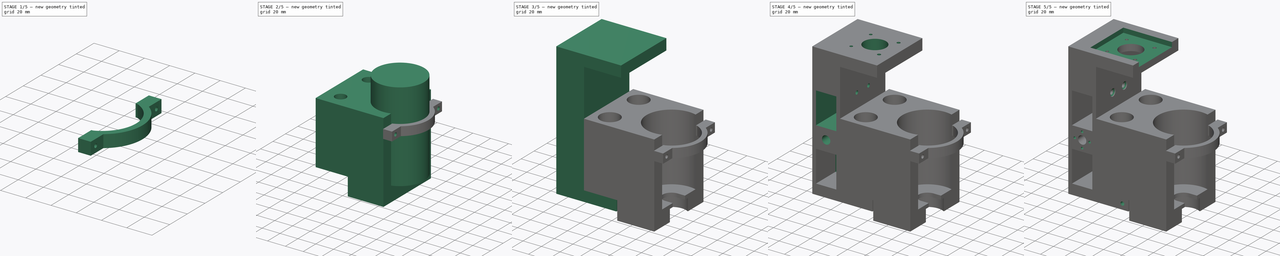
[diagram: build sequence overview — one tinted view per stage of 5, left to right]
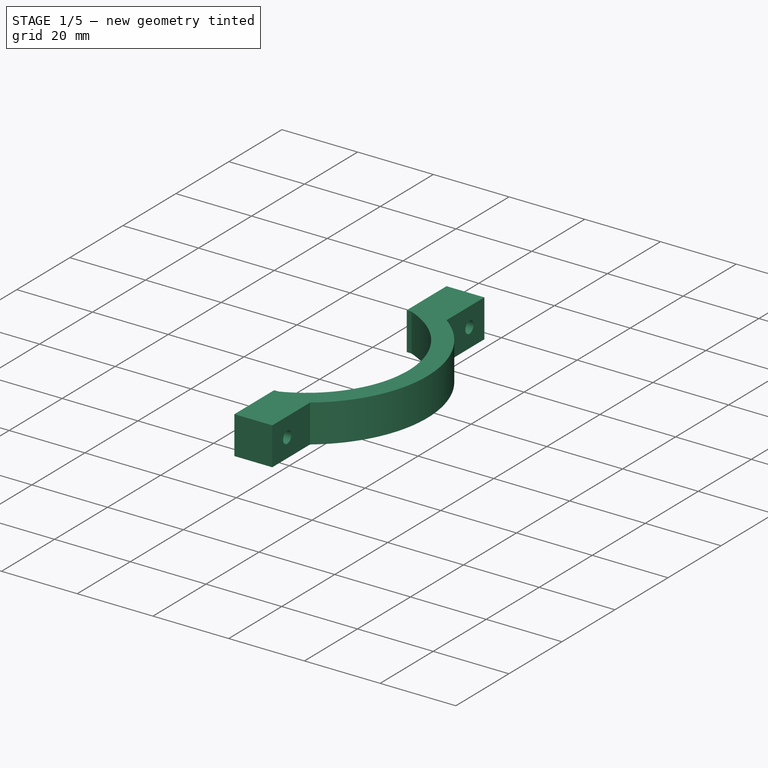
[diagram: stage 1 of 5 — iso view after this stage's code; geometry added in this stage tinted green]
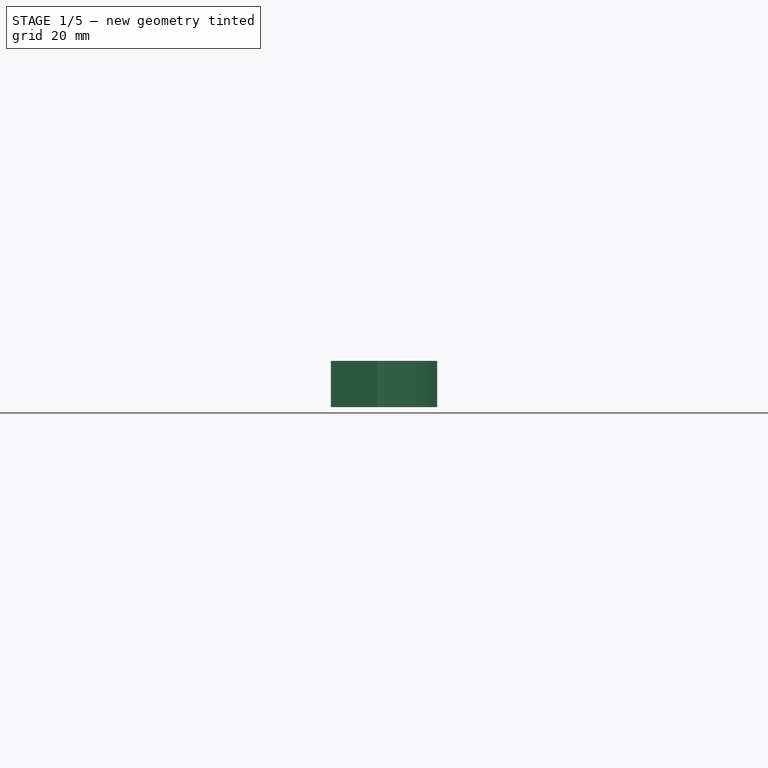
[diagram: stage 1 of 5 — front view after this stage's code; geometry added in this stage tinted green]
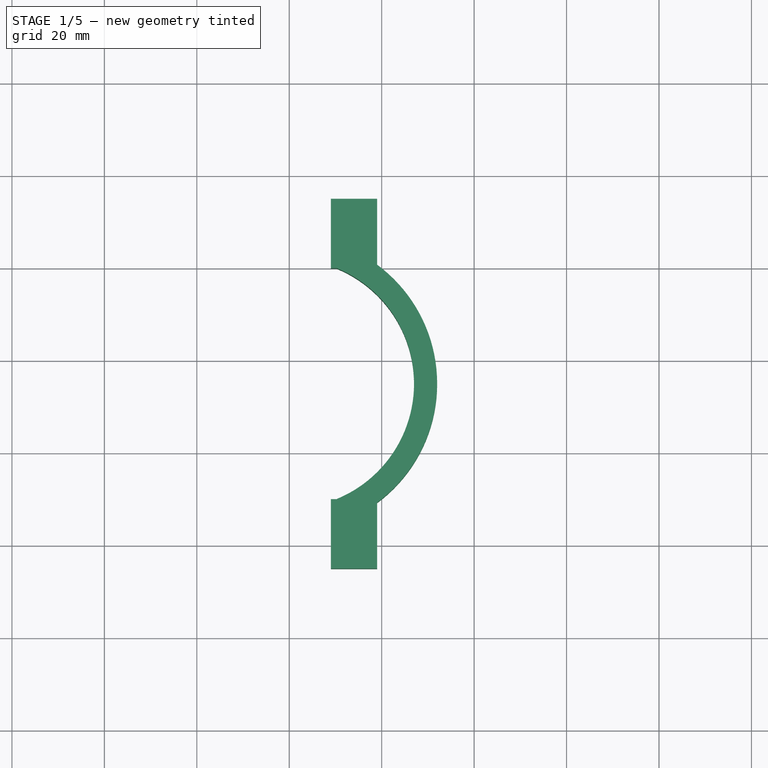
[diagram: stage 1 of 5 — top view after this stage's code; geometry added in this stage tinted green]
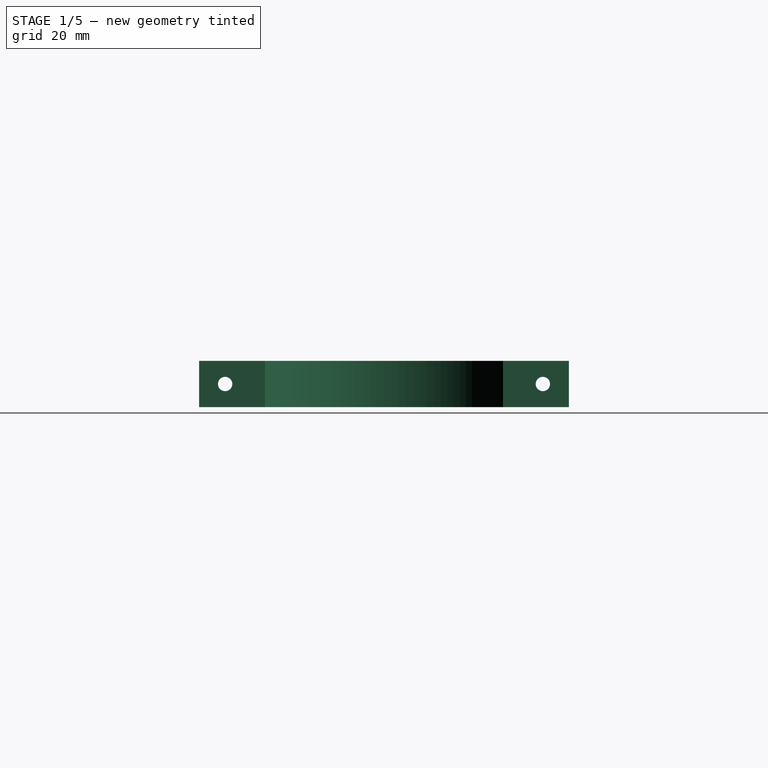
[diagram: stage 1 of 5 — right view after this stage's code; geometry added in this stage tinted green]
FCSTD DOCUMENT  (FreeCAD 0.16R6712 (Git))
Label: c_V3
License: All rights reserved
LicenseURL: http://en.wikipedia.org/wiki/All_rights_reserved
objects: Sketcher::SketchObject×21, PartDesign::Pocket×17, Part::Box×8, Part::Cut×7, Part::Cylinder×5, PartDesign::Pad×4, Part::MultiFuse×4, PartDesign::Chamfer×3, Part::Feature×2, PartDesign::Fillet×1
note: 93 computed .brp shape members not serialized (recipe doc carries the construction recipe); baked Part::Feature solids carry a one-line shape summary decoded from their .brp

FEATURE [Part::Feature] Fillet001
  shape: bbox 76 x 76 x 90 mm, 20 faces (baked)
FEATURE [Sketcher::SketchObject] Sketch018
  ExternalGeometry = -> [Fillet001]
  Placement = pos=(108,0,0) rot=(0.57735,0.57735,0.57735;2.0944rad)
  Support = -> Fillet001 [Face9]
  sketch-geometry (2):
    g0: Circle CenterX=0.629575 CenterY=68 CenterZ=0 NormalX=0 NormalY=0 NormalZ=1 Radius=1.55
    g1: Circle CenterX=69.3704 CenterY=68 CenterZ=0 NormalX=0 NormalY=0 NormalZ=1 Radius=1.55
  constraints (6):
    c: Radius(g0) = 1.55
    c: Equal(g0,g1)
    c: DistanceY(g0,g-3) = 15
    c: DistanceY(g1,g-4) = 15
    c: DistanceX(g-3,g0) = 3.62957
    c: DistanceX(g1,g-4) = 3.62957
FEATURE [PartDesign::Pad] Pad003
  Length = 15
  Length2 = 100
  Sketch = -> Sketch018
  Type = 0
FEATURE [Part::Cylinder] Cylinder003  label="Cilindro003"
  Angle = 360
  Height = 100
  Placement = pos=(100,35,10) rot=(0,0,1;0rad)
  Radius = 27
FEATURE [Part::Cylinder] Cylinder004  label="Cilindro004"
  Angle = 360
  Height = 10
  Placement = pos=(100,35,63) rot=(0,0,1;0rad)
  Radius = 32
FEATURE [Part::Cut] Cut005
  Base = -> Cylinder004
  Tool = -> Cylinder003
FEATURE [Sketcher::SketchObject] Sketch019
  ExternalGeometry = -> [Cut005]
  Placement = pos=(0,0,73) rot=(0,0,1;0rad)
  Support = -> Cut005 [Face2]
  sketch-geometry (3):
    g0: LineSegment StartX=100 StartY=35 StartZ=0 EndX=114.195 EndY=69.2706 EndZ=0
    g1: LineSegment StartX=100 StartY=35 StartZ=0 EndX=114.195 EndY=0.729412 EndZ=0
    g2: ArcOfCircle CenterX=100 CenterY=35 CenterZ=0 NormalX=0 NormalY=0 NormalZ=1 Radius=37.0942 StartAngle=1.1781 EndAngle=5.10509
  constraints (7):
    c: Coincident(g0,g-3)
    c: Coincident(g1,g0)
    c: Coincident(g2,g0)
    c: Coincident(g2,g1)
    c: Coincident(g2,g0)
    c: Angle(g1,g0) = 2.35619
    c: Angle(g0,g-1) = 1.9635
FEATURE [PartDesign::Pocket] Pocket013003
  Length = 5
  Sketch = -> Sketch019
  Type = 1
FEATURE [Part::Box] Box007  label="Cubo003"
  Height = 10
  Length = 10
  Placement = pos=(109,-5,63) rot=(0,0,1;0rad)
  Width = 15
FEATURE [Part::Box] Box008  label="Cubo004"
  Height = 10
  Length = 10
  Placement = pos=(109,60,63) rot=(0,0,1;0rad)
  Width = 15
FEATURE [Part::MultiFuse] Fusion002
  Shapes = -> [Box007,Pocket013003]
FEATURE [Part::MultiFuse] Fusion003
  Shapes = -> [Fusion002,Box008]
FEATURE [Part::Cut] Cut006
  Base = -> Fusion003
  Tool = -> Pad003
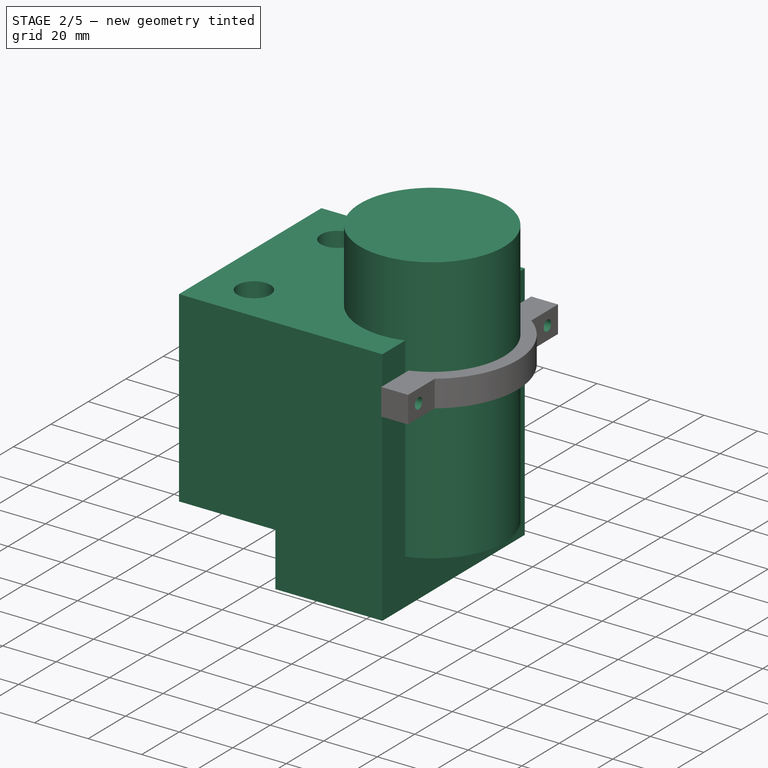
[diagram: stage 2 of 5 — iso view after this stage's code; geometry added in this stage tinted green]
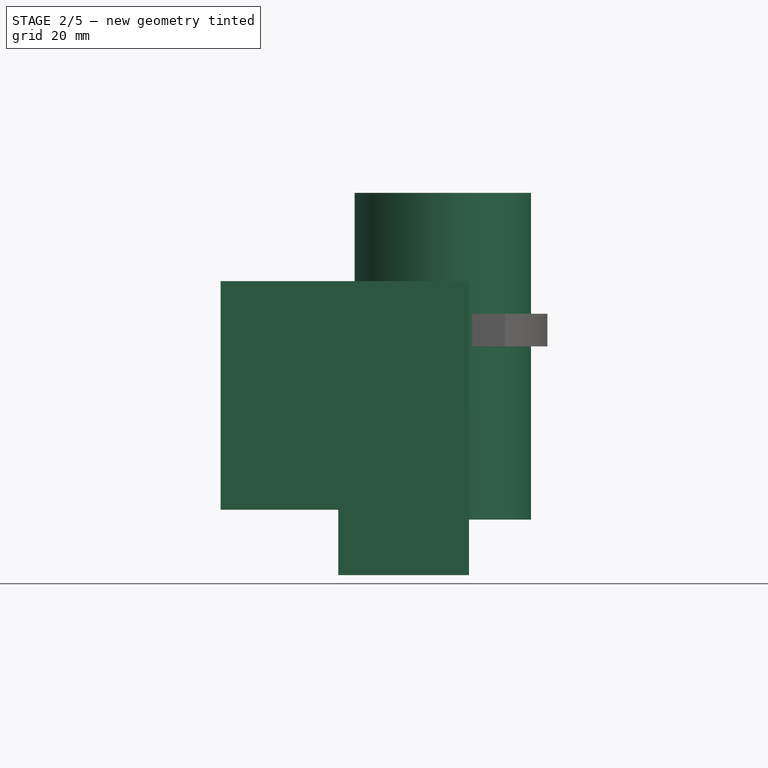
[diagram: stage 2 of 5 — front view after this stage's code; geometry added in this stage tinted green]
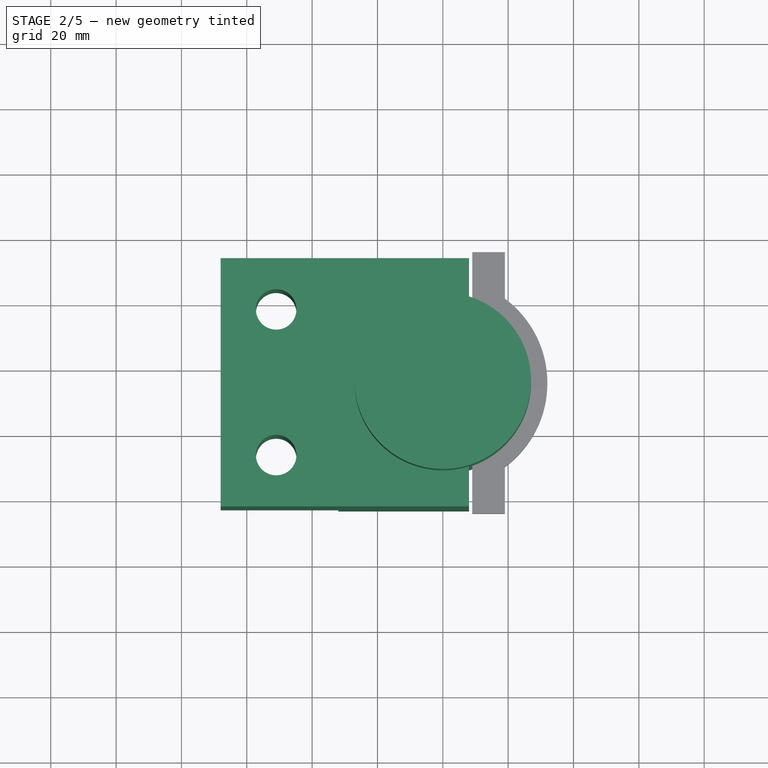
[diagram: stage 2 of 5 — top view after this stage's code; geometry added in this stage tinted green]
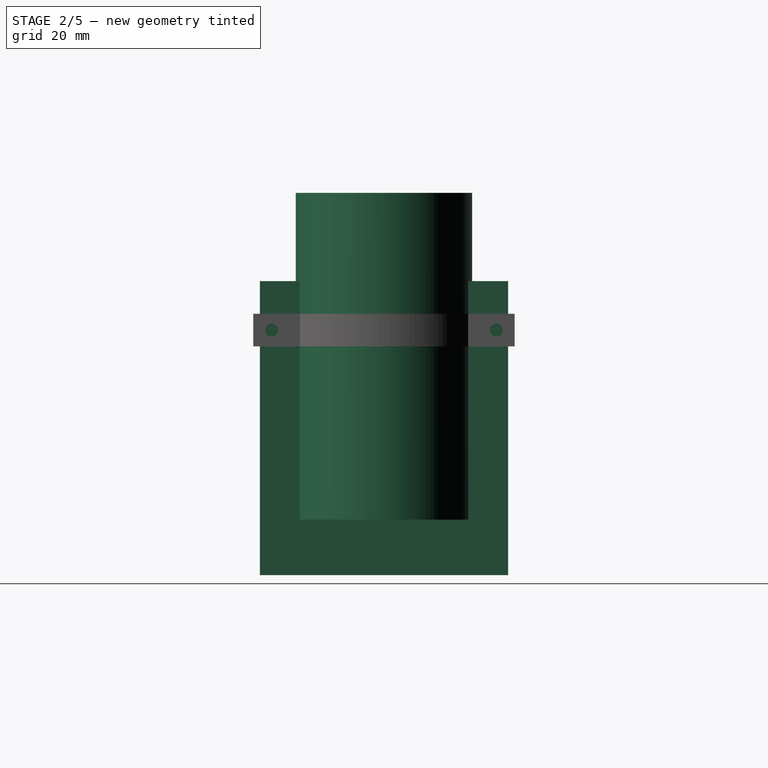
[diagram: stage 2 of 5 — right view after this stage's code; geometry added in this stage tinted green]
FEATURE [Part::Box] Box005  label="Cubo001"
  Height = 70
  Length = 76
  Placement = pos=(32,-3,40) rot=(0,0,1;0rad)
  Width = 76
FEATURE [Part::Cylinder] Cylinder  label="Cilindro"
  Angle = 360
  Height = 132
  Placement = pos=(49,12.7,0) rot=(0,0,1;0rad)
  Radius = 6.2
FEATURE [Part::Cylinder] Cylinder001  label="Cilindro001"
  Angle = 360
  Height = 132
  Placement = pos=(49,57.3,0) rot=(0,0,1;0rad)
  Radius = 6.2
FEATURE [Part::MultiFuse] Fusion  label="barrasLisas"
  Shapes = -> [Cylinder,Cylinder001]
FEATURE [Part::Cut] Cut003
  Base = -> Box005
  Placement = pos=(0,0,-27) rot=(0,0,1;0rad)
  Tool = -> Fusion
FEATURE [Part::Box] Box006  label="Cubo002"
  Height = 20
  Length = 40
  Placement = pos=(68,-3,-7) rot=(0,0,1;0rad)
  Width = 76
FEATURE [Part::Cylinder] Cylinder002  label="Cilindro002"
  Angle = 360
  Height = 100
  Placement = pos=(100,35,10) rot=(0,0,1;0rad)
  Radius = 27
FEATURE [Part::Feature] Pocket013001  label="v002"
  shape: bbox 76 x 76 x 90 mm, 18 faces (baked)
FEATURE [Sketcher::SketchObject] Sketch017
  ExternalGeometry = -> [Pocket013001]
  Placement = pos=(0,-3,0) rot=(1,0,0;1.5708rad)
  Support = -> Pocket013001 [Face15]
  sketch-geometry (4):
    g0: ArcOfCircle CenterX=-12.2473 CenterY=-68.3709 CenterZ=0 NormalX=0 NormalY=0 NormalZ=1 Radius=114.284 StartAngle=0.566881 EndAngle=1.17324
    g1: LineSegment StartX=32 StartY=37 StartZ=0 EndX=32 EndY=13 EndZ=0
    g2: LineSegment StartX=32 StartY=13 StartZ=0 EndX=68 EndY=-7 EndZ=0
    g3: LineSegment StartX=68 StartY=-7 StartZ=0 EndX=84.1605 EndY=-7 EndZ=0
  constraints (10):
    c: PointOnObject(g3,g-3)
    c: PointOnObject(g0,g-4)
    c: Coincident(g0,g1)
    c: Coincident(g1,g2)
    c: Coincident(g2,g-3)
    c: Coincident(g2,g3)
    c: Coincident(g1,g-4)
    c: Coincident(g3,g0)
    c: PointOnObject(g-5,g0)
    c: DistanceY(g1,g0) = 24
FEATURE [PartDesign::Pocket] Pocket013002  label="v2"
  Length = 5
  Sketch = -> Sketch017
  Type = 1
FEATURE [PartDesign::Fillet] Fillet  label="sin_taladro"
  Base = -> Pocket013002 [Edge30,Edge36]
  Radius = 4
FEATURE [Sketcher::SketchObject] Sketch020
  ExternalGeometry = -> [Cut006]
  Placement = pos=(119,0,0) rot=(0.57735,0.57735,0.57735;2.0944rad)
  Support = -> Cut006 [Face22]
  sketch-geometry (2):
    g0: Circle CenterX=0.629575 CenterY=68 CenterZ=0 NormalX=0 NormalY=0 NormalZ=1 Radius=2
    g1: Circle CenterX=69.3704 CenterY=68 CenterZ=0 NormalX=0 NormalY=0 NormalZ=1 Radius=2
  constraints (4):
    c: Coincident(g0,g-3)
    c: Radius(g0) = 2
    c: Coincident(g1,g-4)
    c: Radius(g1) = 2
FEATURE [PartDesign::Pocket] Pocket013004
  Length = 5
  Sketch = -> Sketch020
  Type = 1
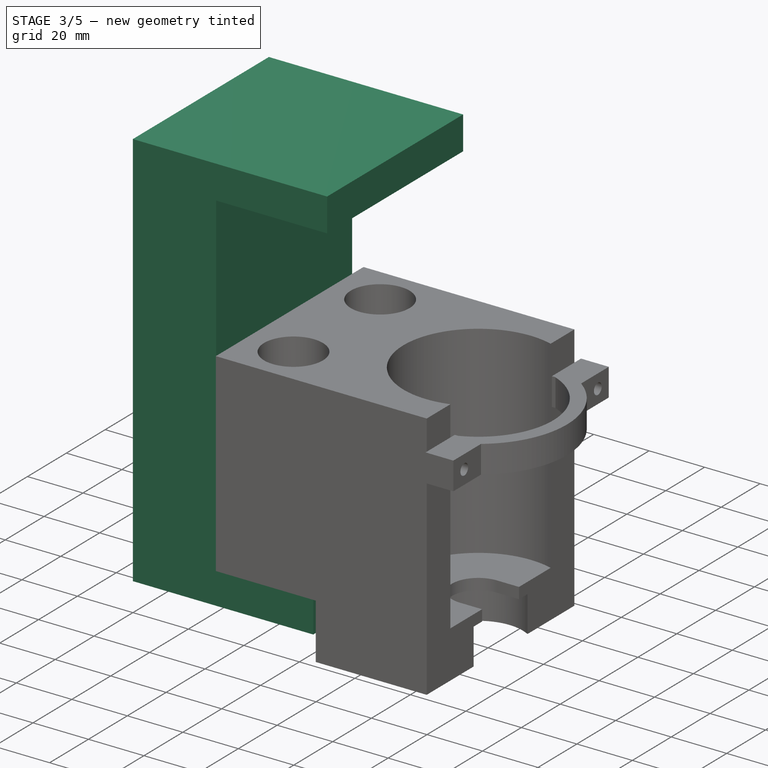
[diagram: stage 3 of 5 — iso view after this stage's code; geometry added in this stage tinted green]
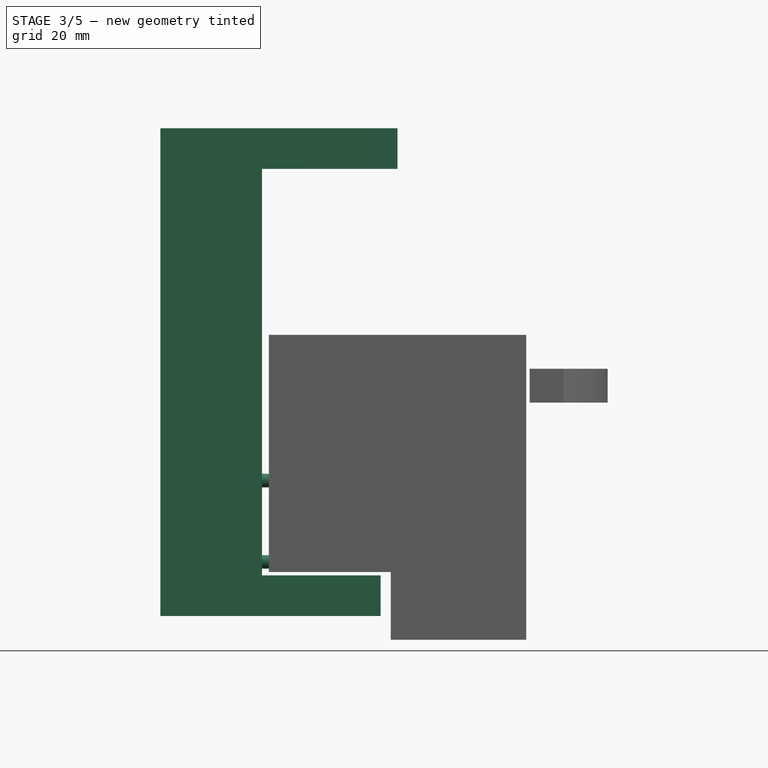
[diagram: stage 3 of 5 — front view after this stage's code; geometry added in this stage tinted green]
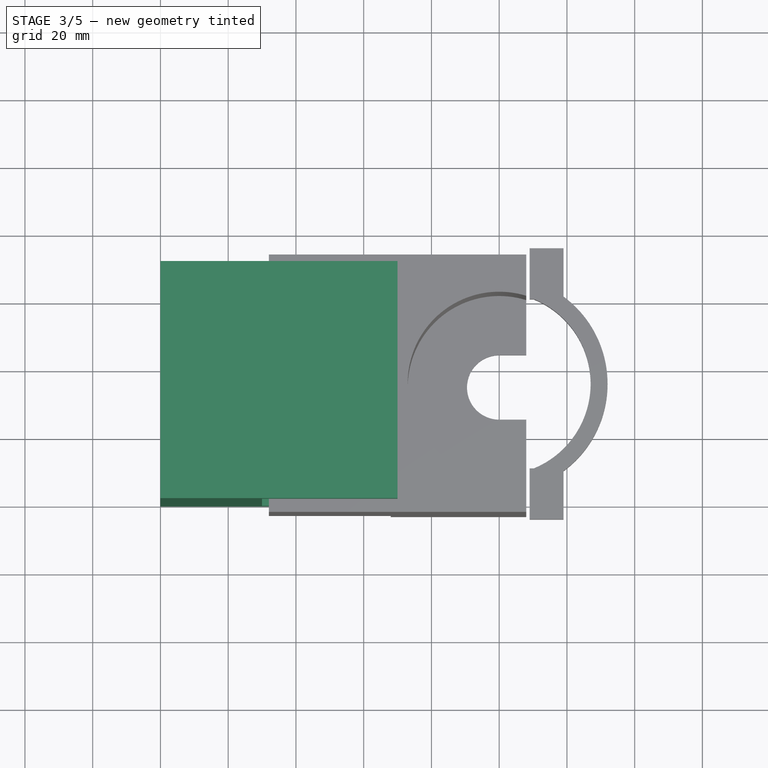
[diagram: stage 3 of 5 — top view after this stage's code; geometry added in this stage tinted green]
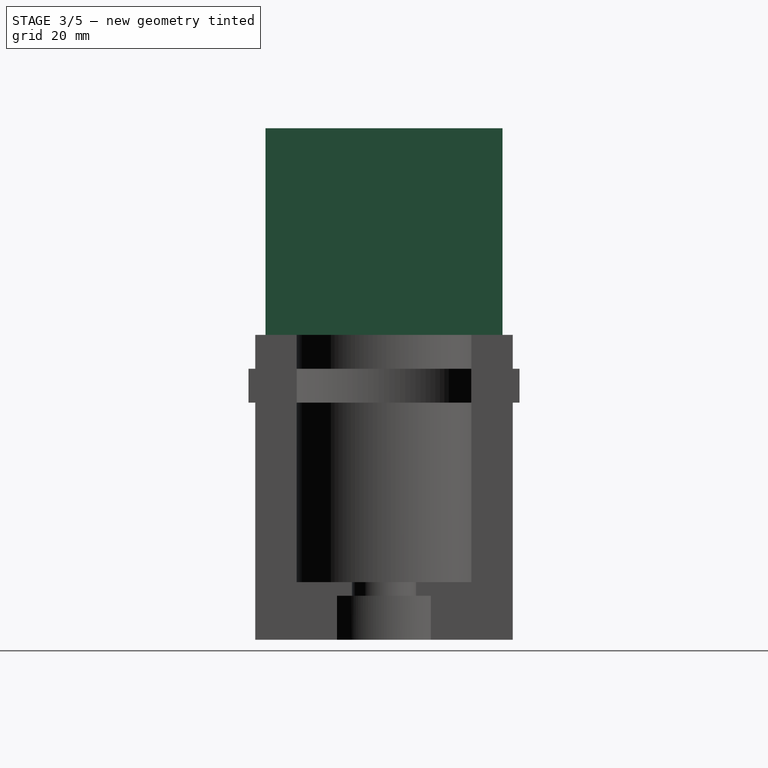
[diagram: stage 3 of 5 — right view after this stage's code; geometry added in this stage tinted green]
FEATURE [Part::Box] Box  label="Cubo"
  Height = 144
  Length = 70
  Width = 70
FEATURE [Sketcher::SketchObject] Sketch
  ExternalGeometry = -> [Box]
  Placement = pos=(0,0,0) rot=(1,0,0;1.5708rad)
  Support = -> Box [Face3]
  sketch-geometry (6):
    g0: LineSegment StartX=30 StartY=132 StartZ=0 EndX=72 EndY=132 EndZ=0
    g1: LineSegment StartX=72 StartY=132 StartZ=0 EndX=72 EndY=-8 EndZ=0
    g2: LineSegment StartX=65 StartY=12 StartZ=0 EndX=30 EndY=12 EndZ=0
    g3: LineSegment StartX=30 StartY=12 StartZ=0 EndX=30 EndY=132 EndZ=0
    g4: LineSegment StartX=65 StartY=12 StartZ=0 EndX=65 EndY=-8 EndZ=0
    g5: LineSegment StartX=65 StartY=-8 StartZ=0 EndX=72 EndY=-8 EndZ=0
  constraints (18):
    c: Coincident(g0,g1)
    c: Coincident(g2,g3)
    c: Coincident(g3,g0)
    c: Horizontal(g0)
    c: Horizontal(g2)
    c: Vertical(g1)
    c: Vertical(g3)
    c: DistanceY(g-1,g2) = 12
    c: DistanceY(g0,g-3) = 12
    c: DistanceX(g-1,g2) = 30
    c: Coincident(g4,g5)
    c: Horizontal(g5)
    c: Vertical(g4)
    c: Coincident(g2,g4)
    c: DistanceX(g2,g2) = 35
    c: DistanceX(g0,g0) = 42
    c: DistanceY(g4,g4) = 20
    c: Coincident(g1,g5)
FEATURE [PartDesign::Pocket] Pocket
  Length = 5
  Sketch = -> Sketch
  Type = 1
FEATURE [Part::Box] Box001  label="hueco_rodamientos_inferior"
  Height = 34
  Length = 22
  Placement = pos=(4,0,11) rot=(0,0,1;0rad)
  Width = 30
FEATURE [Sketcher::SketchObject] Sketch002
  ExternalGeometry = -> [Box001]
  Placement = pos=(26,0,11) rot=(0.57735,0.57735,0.57735;2.0944rad)
  Support = -> Box001 [Face2]
  sketch-geometry (4):
    g0: Circle CenterX=6 CenterY=29 CenterZ=0 NormalX=0 NormalY=0 NormalZ=1 Radius=2
    g1: Circle CenterX=6 CenterY=5 CenterZ=0 NormalX=0 NormalY=0 NormalZ=1 Radius=2
    g2: Circle CenterX=24 CenterY=29 CenterZ=0 NormalX=0 NormalY=0 NormalZ=1 Radius=2
    g3: Circle CenterX=24 CenterY=5 CenterZ=0 NormalX=0 NormalY=0 NormalZ=1 Radius=2
  constraints (12):
    c: DistanceY(g1,g0) = 24
    c: DistanceY(g3,g2) = 24
    c: DistanceX(g0,g2) = 18
    c: Radius(g0) = 2
    c: Equal(g0,g2)
    c: Equal(g2,g3)
    c: Equal(g3,g1)
    c: DistanceX(g1,g0) = 0
    c: DistanceX(g2,g3) = 0
    c: DistanceY(g0,g2) = 0
    c: DistanceX(g-1,g1) = 6
    c: DistanceY(g-1,g1) = 5
FEATURE [PartDesign::Pad] Pad  label="rodamiento1"
  Length = 10
  Length2 = 100
  Placement = pos=(4,0,11) rot=(0,0,1;0rad)
  Sketch = -> Sketch002
  Type = 0
FEATURE [Sketcher::SketchObject] Sketch014
  ExternalGeometry = -> [Cut003]
  Placement = pos=(0,0,83) rot=(0,0,1;0rad)
  Support = -> Cut003 [Face3]
  sketch-geometry (2):
    g0: Circle CenterX=49 CenterY=57.3 CenterZ=0 NormalX=0 NormalY=0 NormalZ=1 Radius=10.6
    g1: Circle CenterX=49 CenterY=12.7 CenterZ=0 NormalX=0 NormalY=0 NormalZ=1 Radius=10.6
  constraints (4):
    c: Coincident(g0,g-3)
    c: Coincident(g1,g-4)
    c: Radius(g1) = 10.6
    c: Equal(g1,g0)
FEATURE [PartDesign::Pocket] Pocket011
  Length = 5
  Placement = pos=(0,0,-27) rot=(0,0,1;0rad)
  Sketch = -> Sketch014
  Type = 1
FEATURE [Part::MultiFuse] Fusion001
  Shapes = -> [Pocket011,Box006]
FEATURE [Part::Cut] Cut004
  Base = -> Fusion001
  Tool = -> Cylinder002
FEATURE [Sketcher::SketchObject] Sketch015
  ExternalGeometry = -> [Cut004]
  Placement = pos=(0,0,10) rot=(0,0,1;0rad)
  Support = -> Cut004 [Face16]
  sketch-geometry (4):
    g0: ArcOfCircle CenterX=100 CenterY=35 CenterZ=0 NormalX=0 NormalY=0 NormalZ=1 Radius=9.5 StartAngle=1.5708 EndAngle=4.71239
    g1: LineSegment StartX=100 StartY=44.5 StartZ=0 EndX=110 EndY=44.5 EndZ=0
    g2: LineSegment StartX=110 StartY=44.5 StartZ=0 EndX=110 EndY=25.5 EndZ=0
    g3: LineSegment StartX=110 StartY=25.5 StartZ=0 EndX=100 EndY=25.5 EndZ=0
  constraints (9):
    c: Coincident(g0,g-3)
    c: Radius(g0) = 9.5
    c: Coincident(g1,g2)
    c: Coincident(g2,g3)
    c: Horizontal(g1)
    c: Horizontal(g3)
    c: Vertical(g2)
    c: Coincident(g0,g1)
    c: Coincident(g0,g3)
FEATURE [PartDesign::Pocket] Pocket012
  Length = 5
  Sketch = -> Sketch015
  Type = 1
FEATURE [Sketcher::SketchObject] Sketch016
  ExternalGeometry = -> [Pocket012]
  Placement = pos=(0,0,-7) rot=(1,0,0;3.14159rad)
  Support = -> Pocket012 [Face14]
  sketch-geometry (1):
    g0: Circle CenterX=100 CenterY=-35 CenterZ=0 NormalX=0 NormalY=0 NormalZ=1 Radius=16
  constraints (2):
    c: Coincident(g0,g-3)
    c: Radius(g0) = 16
FEATURE [PartDesign::Pocket] Pocket013  label="v1"
  Length = 13
  Sketch = -> Sketch016
  Type = 0
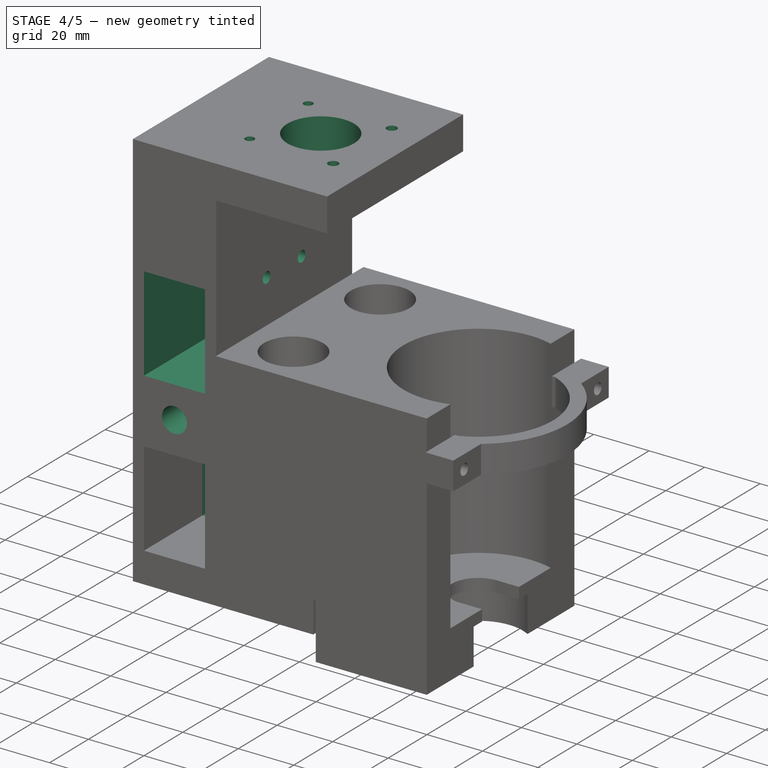
[diagram: stage 4 of 5 — iso view after this stage's code; geometry added in this stage tinted green]
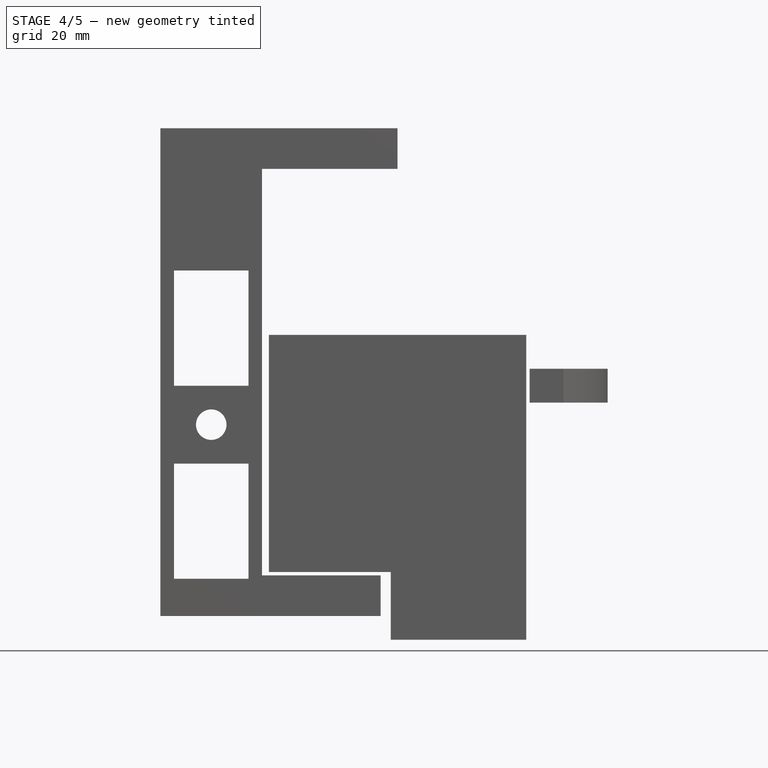
[diagram: stage 4 of 5 — front view after this stage's code; geometry added in this stage tinted green]
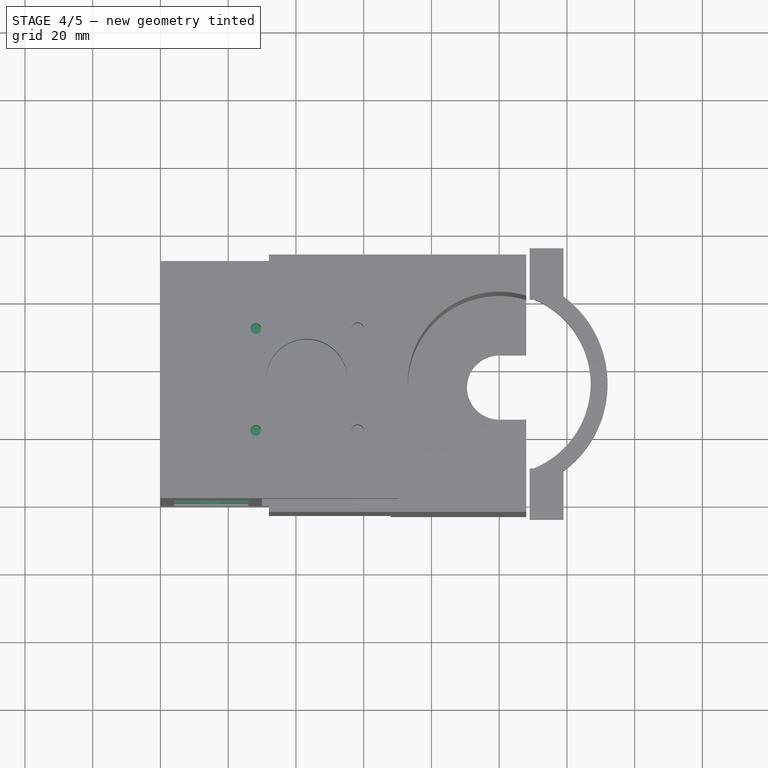
[diagram: stage 4 of 5 — top view after this stage's code; geometry added in this stage tinted green]
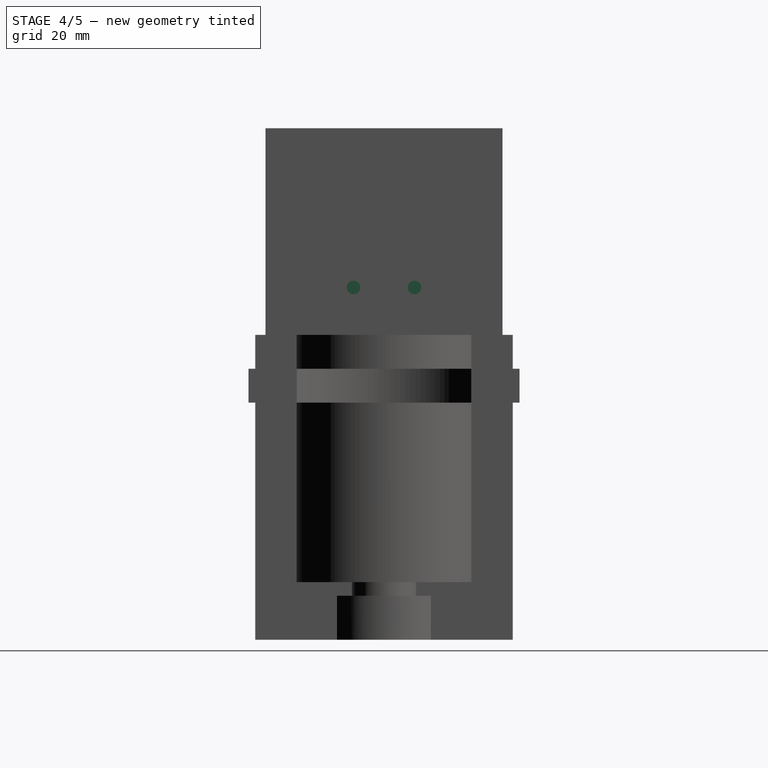
[diagram: stage 4 of 5 — right view after this stage's code; geometry added in this stage tinted green]
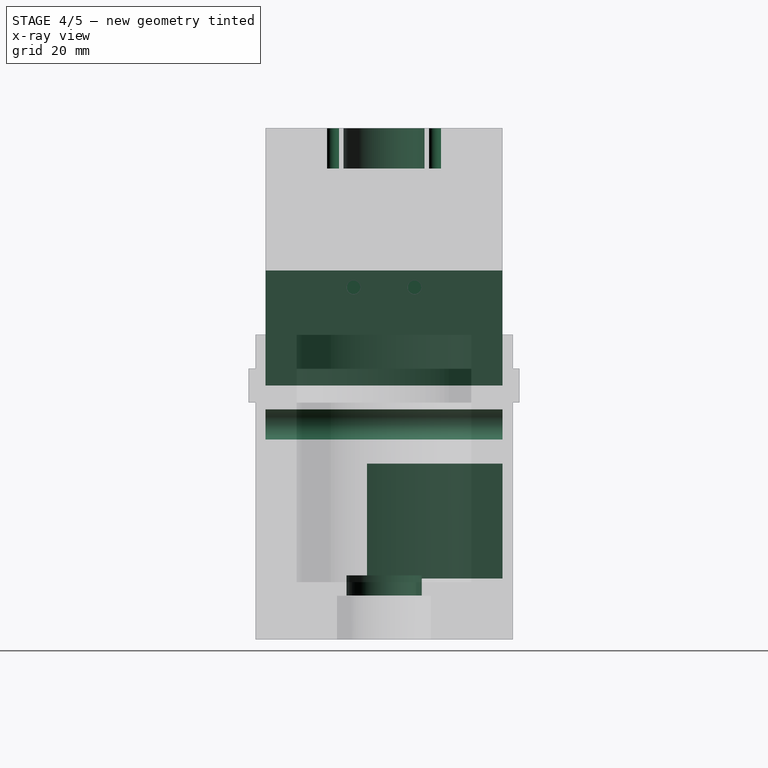
[diagram: stage 4 of 5 — x-ray composite at the right view; earlier geometry ghosted, this stage's added geometry solid]
FEATURE [Sketcher::SketchObject] Sketch001
  ExternalGeometry = -> [Pocket]
  Placement = pos=(0,0,0) rot=(1,0,0;1.5708rad)
  Support = -> Pocket [Face2]
  sketch-geometry (11):
    g0: Circle CenterX=15 CenterY=28 CenterZ=0 NormalX=0 NormalY=0 NormalZ=1 Radius=4.1
    g1: Circle CenterX=15 CenterY=85 CenterZ=0 NormalX=0 NormalY=0 NormalZ=1 Radius=4.1
    g2: Circle CenterX=15 CenterY=56.5 CenterZ=0 NormalX=0 NormalY=0 NormalZ=1 Radius=4.5
    g3: LineSegment StartX=4 StartY=102 StartZ=0 EndX=26 EndY=102 EndZ=0
    g4: LineSegment StartX=26 StartY=102 StartZ=0 EndX=26 EndY=68 EndZ=0
    g5: LineSegment StartX=26 StartY=68 StartZ=0 EndX=4 EndY=68 EndZ=0
    g6: LineSegment StartX=4 StartY=68 StartZ=0 EndX=4 EndY=102 EndZ=0
    g7: LineSegment StartX=4 StartY=45 StartZ=0 EndX=26 EndY=45 EndZ=0
    g8: LineSegment StartX=26 StartY=45 StartZ=0 EndX=26 EndY=11 EndZ=0
    g9: LineSegment StartX=26 StartY=11 StartZ=0 EndX=4 EndY=11 EndZ=0
    g10: LineSegment StartX=4 StartY=11 StartZ=0 EndX=4 EndY=45 EndZ=0
  constraints (33):
    c: DistanceX(g0,g-3) = 15
    c: DistanceY(g-3,g0) = 16
    c: Radius(g0) = 4.1
    c: Radius(g1) = 4.1
    c: Radius(g2) = 4.5
    c: DistanceY(g0,g2) = 28.5
    c: DistanceX(g2,g0) = 0
    c: DistanceY(g2,g1) = 28.5
    c: DistanceX(g1,g0) = 0
    c: Coincident(g3,g4)
    c: Coincident(g4,g5)
    c: Coincident(g5,g6)
    c: Coincident(g6,g3)
    c: Horizontal(g3)
    c: Horizontal(g5)
    c: Vertical(g4)
    c: Vertical(g6)
    c: Coincident(g7,g8)
    c: Coincident(g8,g9)
    c: Coincident(g9,g10)
    c: Coincident(g10,g7)
    c: Horizontal(g7)
    c: Horizontal(g9)
    c: Vertical(g8)
    c: Vertical(g10)
    c: DistanceX(g3,g3) = 22
    c: DistanceY(g4,g4) = 34
    c: DistanceY(g1,g3) = 17
    c: DistanceX(g3,g1) = 11
    c: DistanceX(g7,g7) = 22
    c: DistanceY(g8,g8) = 34
    c: DistanceX(g7,g0) = 11
    c: DistanceY(g0,g7) = 17
FEATURE [PartDesign::Pocket] Pocket001
  Length = 5
  Sketch = -> Sketch001
  Type = 1
FEATURE [Part::Box] Box003  label="hueco_rodamientos_inferior001"
  Height = 34
  Length = 22
  Placement = pos=(4,40,11) rot=(0,0,1;0rad)
  Width = 30
FEATURE [Sketcher::SketchObject] Sketch003
  ExternalGeometry = -> [Box003]
  Placement = pos=(26,40,11) rot=(0.57735,0.57735,0.57735;2.0944rad)
  Support = -> Box003 [Face2]
  sketch-geometry (4):
    g0: Circle CenterX=6 CenterY=29 CenterZ=0 NormalX=0 NormalY=0 NormalZ=1 Radius=2
    g1: Circle CenterX=6 CenterY=5 CenterZ=0 NormalX=0 NormalY=0 NormalZ=1 Radius=2
    g2: Circle CenterX=24 CenterY=29 CenterZ=0 NormalX=0 NormalY=0 NormalZ=1 Radius=2
    g3: Circle CenterX=24 CenterY=5 CenterZ=0 NormalX=0 NormalY=0 NormalZ=1 Radius=2
  constraints (12):
    c: DistanceY(g1,g0) = 24
    c: DistanceY(g3,g2) = 24
    c: DistanceX(g0,g2) = 18
    c: Radius(g0) = 2
    c: Equal(g0,g2)
    c: Equal(g2,g3)
    c: Equal(g3,g1)
    c: DistanceX(g1,g0) = 0
    c: DistanceX(g2,g3) = 0
    c: DistanceY(g0,g2) = 0
    c: DistanceX(g-1,g1) = 6
    c: DistanceY(g-1,g1) = 5
FEATURE [PartDesign::Pad] Pad001  label="rodamiento002"
  Length = 10
  Length2 = 100
  Placement = pos=(4,40,11) rot=(0,0,1;0rad)
  Sketch = -> Sketch003
  Type = 0
FEATURE [Part::Box] Box004  label="hueco_rodamientos_inferior002"
  Height = 34
  Length = 22
  Placement = pos=(4,20,68) rot=(0,0,1;0rad)
  Width = 30
FEATURE [Sketcher::SketchObject] Sketch004
  ExternalGeometry = -> [Box004]
  Placement = pos=(26,20,68) rot=(0.57735,0.57735,0.57735;2.0944rad)
  Support = -> Box004 [Face2]
  sketch-geometry (4):
    g0: Circle CenterX=6 CenterY=29 CenterZ=0 NormalX=0 NormalY=0 NormalZ=1 Radius=2
    g1: Circle CenterX=6 CenterY=5 CenterZ=0 NormalX=0 NormalY=0 NormalZ=1 Radius=2
    g2: Circle CenterX=24 CenterY=29 CenterZ=0 NormalX=0 NormalY=0 NormalZ=1 Radius=2
    g3: Circle CenterX=24 CenterY=5 CenterZ=0 NormalX=0 NormalY=0 NormalZ=1 Radius=2
  constraints (12):
    c: DistanceY(g1,g0) = 24
    c: DistanceY(g3,g2) = 24
    c: DistanceX(g0,g2) = 18
    c: Radius(g0) = 2
    c: Equal(g0,g2)
    c: Equal(g2,g3)
    c: Equal(g3,g1)
    c: DistanceX(g1,g0) = 0
    c: DistanceX(g2,g3) = 0
    c: DistanceY(g0,g2) = 0
    c: DistanceX(g-1,g1) = 6
    c: DistanceY(g-1,g1) = 5
FEATURE [PartDesign::Pad] Pad002  label="rodamiento003"
  Length = 10
  Length2 = 100
  Placement = pos=(4,20,68) rot=(0,0,1;0rad)
  Sketch = -> Sketch004
  Type = 0
FEATURE [Part::Cut] Cut
  Base = -> Pocket001
  Tool = -> Pad
FEATURE [Part::Cut] Cut001
  Base = -> Cut
  Tool = -> Pad001
FEATURE [Part::Cut] Cut002
  Base = -> Cut001
  Tool = -> Pad002
FEATURE [Sketcher::SketchObject] Sketch005
  Placement = pos=(0,0,12) rot=(0,0,1;0rad)
  Support = -> Cut002 [Face7]
  sketch-geometry (1):
    g0: Circle CenterX=43.2 CenterY=35 CenterZ=0 NormalX=0 NormalY=0 NormalZ=1 Radius=11.15
  constraints (3):
    c: Radius(g0) = 11.15
    c: DistanceY(g-1,g0) = 35
    c: DistanceX(g-1,g0) = 43.2
FEATURE [PartDesign::Pocket] Pocket002
  Length = 6
  Sketch = -> Sketch005
  Type = 0
FEATURE [Sketcher::SketchObject] Sketch006
  Placement = pos=(0,0,144) rot=(0,0,1;0rad)
  Support = -> Pocket002 [Face3]
  sketch-geometry (5):
    g0: Circle CenterX=43.2 CenterY=35 CenterZ=0 NormalX=0 NormalY=0 NormalZ=1 Radius=12
    g1: Circle CenterX=28.15 CenterY=50.05 CenterZ=0 NormalX=0 NormalY=0 NormalZ=1 Radius=1.6
    g2: Circle CenterX=58.25 CenterY=19.95 CenterZ=0 NormalX=0 NormalY=0 NormalZ=1 Radius=1.8
    g3: Circle CenterX=58.25 CenterY=50.05 CenterZ=0 NormalX=0 NormalY=0 NormalZ=1 Radius=1.8
    g4: Circle CenterX=28.15 CenterY=19.95 CenterZ=0 NormalX=0 NormalY=0 NormalZ=1 Radius=1.6
  constraints (15):
    c: DistanceX(g-1,g0) = 43.2
    c: DistanceY(g-1,g0) = 35
    c: Radius(g0) = 12
    c: Radius(g1) = 1.6
    c: DistanceX(g1,g0) = 15.05
    c: DistanceY(g0,g1) = 15.05
    c: Radius(g2) = 1.8
    c: Radius(g3) = 1.8
    c: Radius(g4) = 1.6
    c: DistanceY(g4,g0) = 15.05
    c: DistanceX(g4,g0) = 15.05
    c: DistanceX(g0,g2) = 15.05
    c: DistanceY(g2,g0) = 15.05
    c: DistanceX(g0,g3) = 15.05
    c: DistanceY(g0,g3) = 15.05
FEATURE [PartDesign::Pocket] Pocket003
  Length = 12
  Sketch = -> Sketch006
  Type = 0
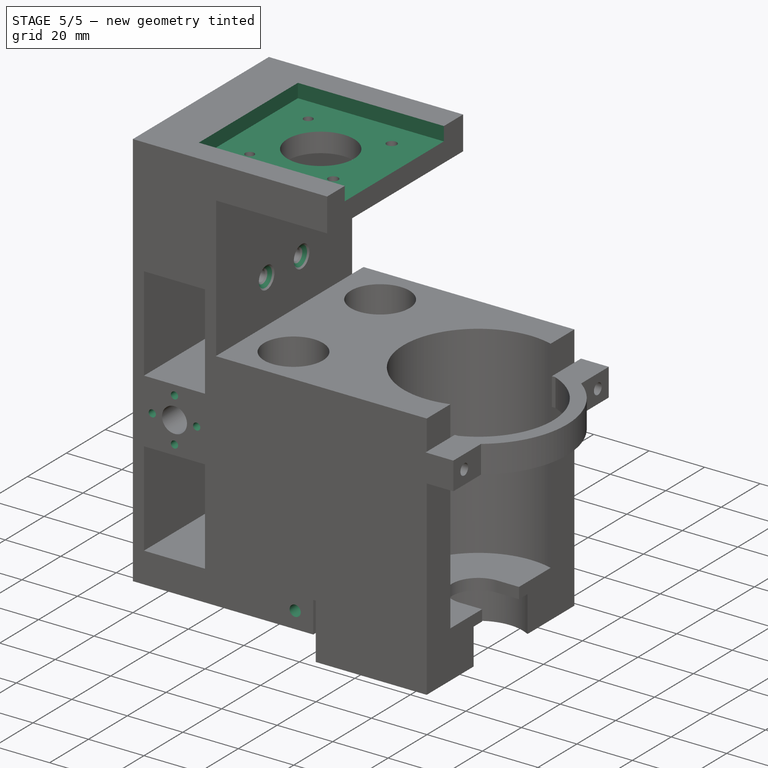
[diagram: stage 5 of 5 — iso view after this stage's code; geometry added in this stage tinted green]
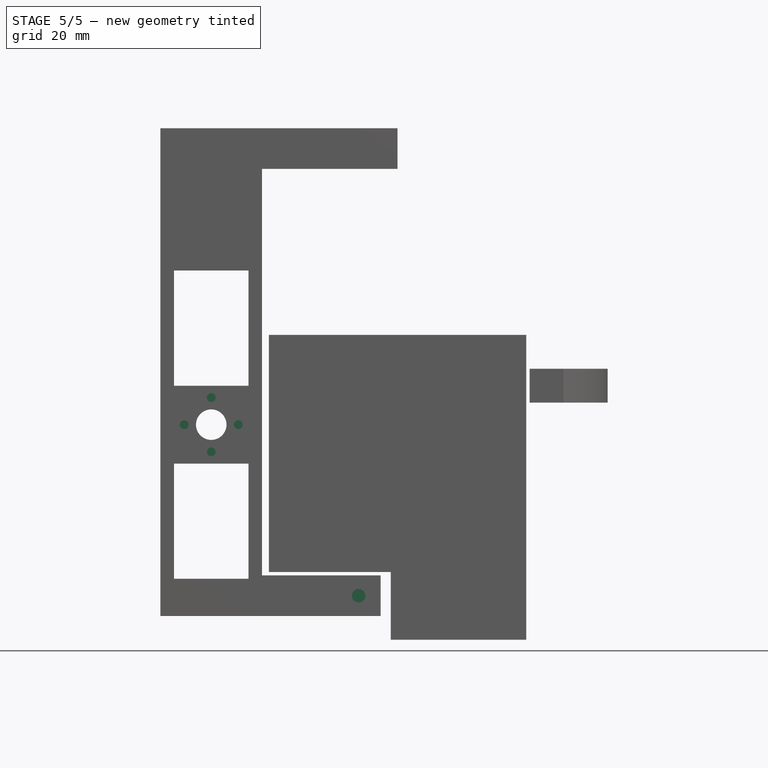
[diagram: stage 5 of 5 — front view after this stage's code; geometry added in this stage tinted green]
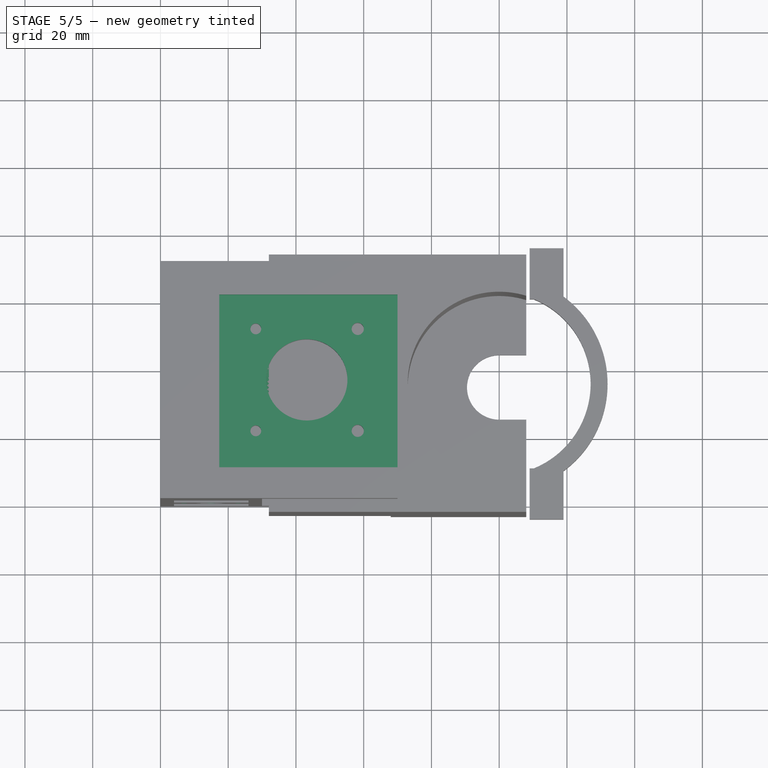
[diagram: stage 5 of 5 — top view after this stage's code; geometry added in this stage tinted green]
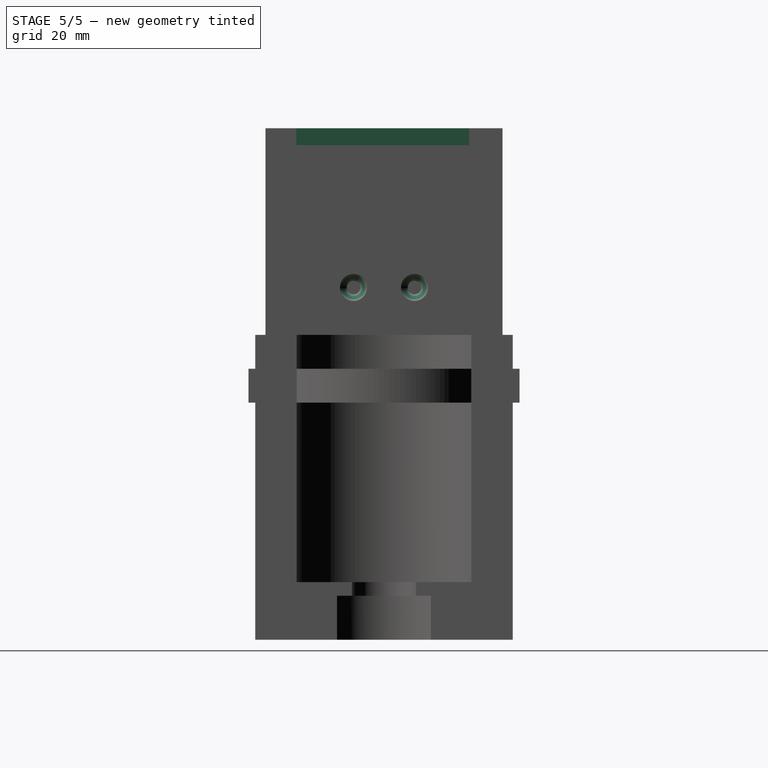
[diagram: stage 5 of 5 — right view after this stage's code; geometry added in this stage tinted green]
FEATURE [Sketcher::SketchObject] Sketch007
  Placement = pos=(0,0,144) rot=(0,0,1;0rad)
  Support = -> Pocket003 [Face3]
  sketch-geometry (4):
    g0: LineSegment StartX=17.3806 StartY=60.1135 StartZ=0 EndX=77.3806 EndY=60.1135 EndZ=0
    g1: LineSegment StartX=77.3806 StartY=60.1135 StartZ=0 EndX=77.3806 EndY=9.10615 EndZ=0
    g2: LineSegment StartX=77.3806 StartY=9.10615 StartZ=0 EndX=17.3806 EndY=9.10615 EndZ=0
    g3: LineSegment StartX=17.3806 StartY=9.10615 StartZ=0 EndX=17.3806 EndY=60.1135 EndZ=0
  constraints (9):
    c: Coincident(g0,g1)
    c: Coincident(g1,g2)
    c: Coincident(g2,g3)
    c: Coincident(g3,g0)
    c: Horizontal(g0)
    c: Horizontal(g2)
    c: Vertical(g1)
    c: Vertical(g3)
    c: DistanceX(g0,g0) = 60
FEATURE [PartDesign::Pocket] Pocket004
  Length = 5
  Sketch = -> Sketch007
  Type = 0
FEATURE [Sketcher::SketchObject] Sketch008
  ExternalGeometry = -> [Pocket004]
  Placement = pos=(0,0,0) rot=(1,0,0;3.14159rad)
  Support = -> Pocket004 [Face5]
  sketch-geometry (2):
    g0: Circle CenterX=49 CenterY=-12.7 CenterZ=0 NormalX=0 NormalY=0 NormalZ=1 Radius=6.2
    g1: Circle CenterX=49 CenterY=-57.3 CenterZ=0 NormalX=0 NormalY=0 NormalZ=1 Radius=6.2
  constraints (6):
    c: DistanceX(g0,g-3) = 16
    c: DistanceY(g0,g-3) = 12.7
    c: Radius(g0) = 6.2
    c: Radius(g1) = 6.2
    c: DistanceY(g-3,g1) = 12.7
    c: DistanceX(g1,g-3) = 16
FEATURE [PartDesign::Pocket] Pocket005
  Length = 136
  Sketch = -> Sketch008
  Type = 0
FEATURE [Sketcher::SketchObject] Sketch009
  ExternalGeometry = -> [Pocket005]
  Placement = pos=(0,0,0) rot=(1,0,0;3.14159rad)
  Support = -> Pocket005 [Face5]
  sketch-geometry (8):
    g0: LineSegment StartX=47.8223 StartY=-56.3 StartZ=0 EndX=65 EndY=-56.3 EndZ=0
    g1: LineSegment StartX=65 StartY=-56.3 StartZ=0 EndX=65 EndY=-58.3 EndZ=0
    g2: LineSegment StartX=65 StartY=-58.3 StartZ=0 EndX=50.1777 EndY=-58.3 EndZ=0
    g3: LineSegment StartX=51.4809 StartY=-13.7 StartZ=0 EndX=65 EndY=-13.7 EndZ=0
    g4: LineSegment StartX=65 StartY=-13.7 StartZ=0 EndX=65 EndY=-11.7 EndZ=0
    g5: LineSegment StartX=65 StartY=-11.7 StartZ=0 EndX=51.4809 EndY=-11.7 EndZ=0
    g6: ArcOfCircle CenterX=49 CenterY=-12.7 CenterZ=0 NormalX=0 NormalY=0 NormalZ=1 Radius=2.67484 StartAngle=5.90002 EndAngle=6.66635
    g7: ArcOfCircle CenterX=49 CenterY=-57.3 CenterZ=0 NormalX=0 NormalY=0 NormalZ=1 Radius=1.545 StartAngle=5.57922 EndAngle=8.72081
  constraints (22):
    c: PointOnObject(g0,g-3)
    c: Horizontal(g0)
    c: Coincident(g0,g1)
    c: PointOnObject(g1,g-3)
    c: Coincident(g1,g2)
    c: Horizontal(g2)
    c: DistanceY(g1,g0) = 2
    c: DistanceY(g-4,g0) = 1
    c: Horizontal(g3)
    c: Coincident(g3,g4)
    c: Coincident(g4,g5)
    c: Horizontal(g5)
    c: DistanceY(g-5,g5) = 1
    c: DistanceY(g3,g4) = 2
    c: PointOnObject(g4,g-3)
    c: PointOnObject(g3,g-3)
    c: Coincident(g6,g-5)
    c: Coincident(g6,g5)
    c: Coincident(g6,g3)
    c: Coincident(g7,g-4)
    c: Coincident(g7,g2)
    c: Coincident(g7,g0)
FEATURE [PartDesign::Pocket] Pocket006
  Length = 12
  Sketch = -> Sketch009
  Type = 0
FEATURE [Sketcher::SketchObject] Sketch010
  ExternalGeometry = -> [Pocket006]
  Placement = pos=(0,0,0) rot=(1,0,0;1.5708rad)
  Support = -> Pocket006 [Face2]
  sketch-geometry (1):
    g0: Circle CenterX=58.5 CenterY=6 CenterZ=0 NormalX=0 NormalY=0 NormalZ=1 Radius=2
  constraints (3):
    c: Radius(g0) = 2
    c: DistanceY(g0,g-3) = 6
    c: DistanceX(g0,g-3) = 6.5
FEATURE [PartDesign::Pocket] Pocket007
  Length = 24
  Sketch = -> Sketch010
  Type = 0
FEATURE [Sketcher::SketchObject] Sketch011
  ExternalGeometry = -> [Pocket007]
  Placement = pos=(0,70,0) rot=(0,0.707107,0.707107;3.14159rad)
  Support = -> Pocket007 [Face4]
  sketch-geometry (1):
    g0: Circle CenterX=-58.5 CenterY=6 CenterZ=0 NormalX=0 NormalY=0 NormalZ=1 Radius=2
  constraints (3):
    c: Radius(g0) = 2
    c: DistanceX(g-3,g0) = 6.5
    c: DistanceY(g0,g-3) = 6
FEATURE [PartDesign::Pocket] Pocket008
  Length = 24
  Sketch = -> Sketch011
  Type = 0
FEATURE [Sketcher::SketchObject] Sketch012
  ExternalGeometry = -> [Pocket008]
  Placement = pos=(0,0,0) rot=(1,0,0;3.14159rad)
  Support = -> Pocket008 [Face5]
  sketch-geometry (8):
    g0: LineSegment StartX=55 StartY=-16.6 StartZ=0 EndX=62.2 EndY=-16.6 EndZ=0
    g1: LineSegment StartX=62.2 StartY=-16.6 StartZ=0 EndX=62.2 EndY=-20 EndZ=0
    g2: LineSegment StartX=62.2 StartY=-20 StartZ=0 EndX=55 EndY=-20 EndZ=0
    g3: LineSegment StartX=55 StartY=-20 StartZ=0 EndX=55 EndY=-16.6 EndZ=0
    g4: LineSegment StartX=55 StartY=-53.4 StartZ=0 EndX=62.2 EndY=-53.4 EndZ=0
    g5: LineSegment StartX=62.2 StartY=-53.4 StartZ=0 EndX=62.2 EndY=-50 EndZ=0
    g6: LineSegment StartX=62.2 StartY=-50 StartZ=0 EndX=55 EndY=-50 EndZ=0
    g7: LineSegment StartX=55 StartY=-50 StartZ=0 EndX=55 EndY=-53.4 EndZ=0
  constraints (24):
    c: Coincident(g0,g1)
    c: Coincident(g1,g2)
    c: Coincident(g2,g3)
    c: Coincident(g3,g0)
    c: Horizontal(g0)
    c: Horizontal(g2)
    c: Vertical(g1)
    c: Vertical(g3)
    c: DistanceX(g0,g0) = 7.2
    c: DistanceY(g1,g1) = 3.4
    c: DistanceY(g1,g-3) = 20
    c: DistanceX(g0,g-3) = 2.8
    c: Coincident(g4,g5)
    c: Coincident(g5,g6)
    c: Coincident(g6,g7)
    c: Coincident(g7,g4)
    c: Horizontal(g4)
    c: Horizontal(g6)
    c: Vertical(g5)
    c: Vertical(g7)
    c: DistanceX(g6,g6) = 7.2
    c: DistanceY(g5,g5) = 3.4
    c: DistanceX(g4,g-4) = 2.8
    c: DistanceY(g-4,g5) = 20
FEATURE [PartDesign::Pocket] Pocket009
  Length = 9
  Sketch = -> Sketch012
  Type = 0
FEATURE [Sketcher::SketchObject] Sketch013
  ExternalGeometry = -> [Pocket009]
  Placement = pos=(0,0,0) rot=(1,0,0;1.5708rad)
  Support = -> Pocket009 [Face2]
  sketch-geometry (6):
    g0: LineSegment [constr] StartX=15 StartY=64.5 StartZ=0 EndX=15 EndY=48.5 EndZ=0
    g1: LineSegment [constr] StartX=7 StartY=56.5 StartZ=0 EndX=23 EndY=56.5 EndZ=0
    g2: Circle CenterX=15 CenterY=64.5 CenterZ=0 NormalX=0 NormalY=0 NormalZ=1 Radius=1.3
    g3: Circle CenterX=23 CenterY=56.5 CenterZ=0 NormalX=0 NormalY=0 NormalZ=1 Radius=1.3
    g4: Circle CenterX=15 CenterY=48.5 CenterZ=0 NormalX=0 NormalY=0 NormalZ=1 Radius=1.3
    g5: Circle CenterX=7 CenterY=56.5 CenterZ=0 NormalX=0 NormalY=0 NormalZ=1 Radius=1.3
  constraints (16):
    c: Vertical(g0)
    c: Horizontal(g1)
    c: PointOnObject(g-3,g0)
    c: PointOnObject(g-3,g1)
    c: DistanceY(g0,g0) = 16
    c: DistanceX(g1,g1) = 16
    c: DistanceX(g1,g-3) = 8
    c: DistanceY(g0,g-3) = 8
    c: Coincident(g2,g0)
    c: Coincident(g3,g1)
    c: Coincident(g4,g0)
    c: Coincident(g5,g1)
    c: Equal(g5,g2)
    c: Equal(g2,g3)
    c: Equal(g3,g4)
    c: Radius(g5) = 1.3
FEATURE [PartDesign::Pocket] Pocket010
  Length = 32
  Sketch = -> Sketch013
  Type = 0
FEATURE [PartDesign::Chamfer] Chamfer
  Base = -> Pocket010 [Edge85,Edge86,Edge84,Edge87,Edge82,Edge83,Edge88,Edge93,Edge90,Edge91,Edge89,Edge92]
  Size = 2
FEATURE [PartDesign::Chamfer] Chamfer001
  Base = -> Chamfer [Edge50]
  Size = 2
FEATURE [PartDesign::Chamfer] Chamfer002
  Base = -> Chamfer001 [Edge112,Edge109]
  Size = 1
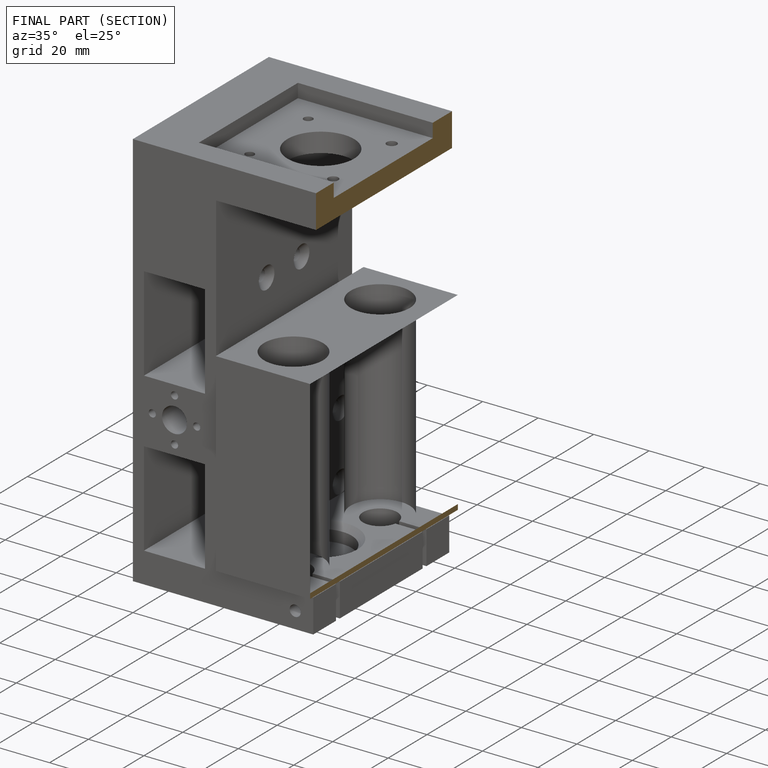
[diagram: finished part — half-section view (interior)]
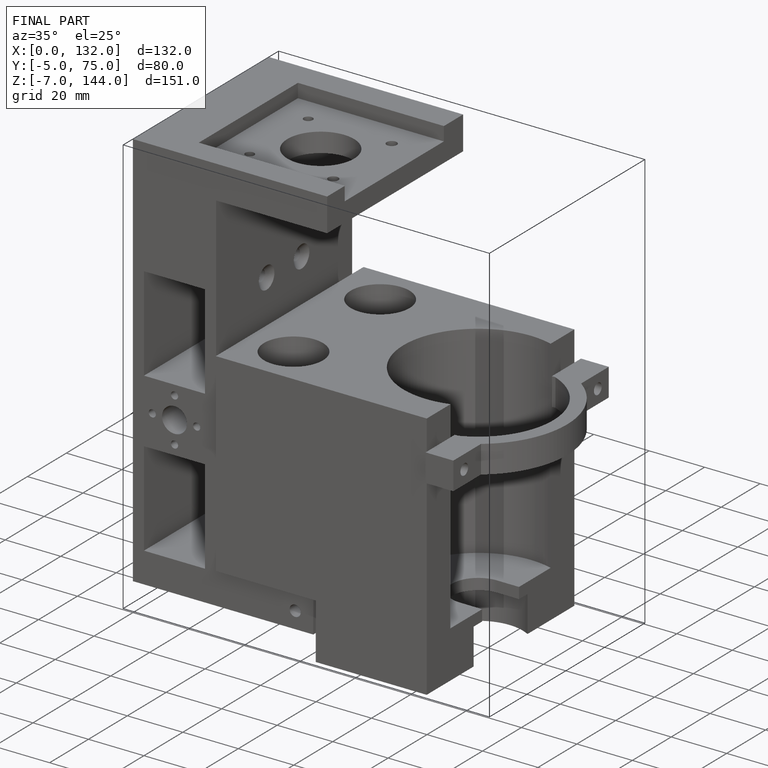
[diagram: finished part — iso view with bounding-box wireframe]
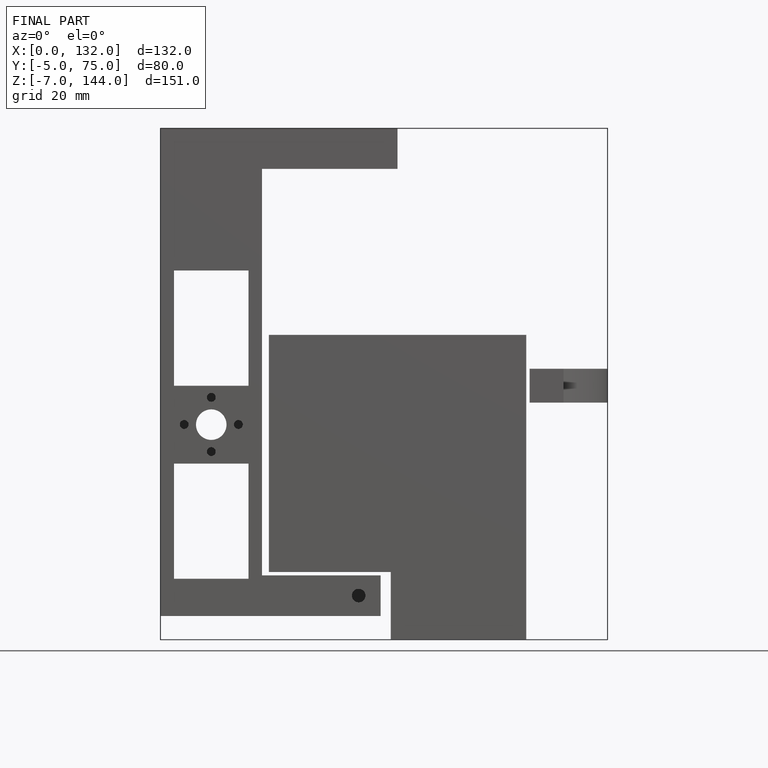
[diagram: finished part — front view with bounding-box wireframe]
